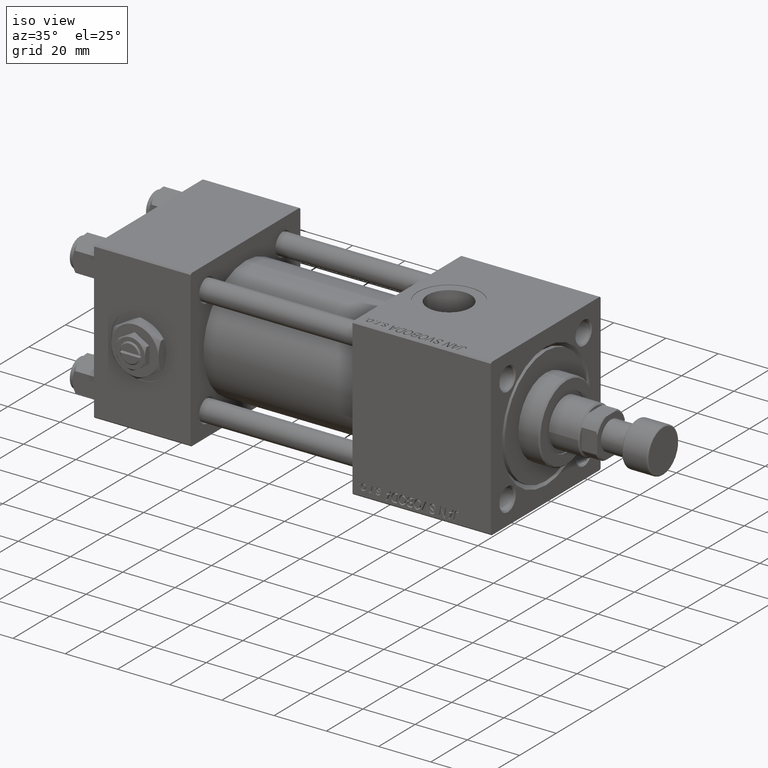
[diagram: clean part render]
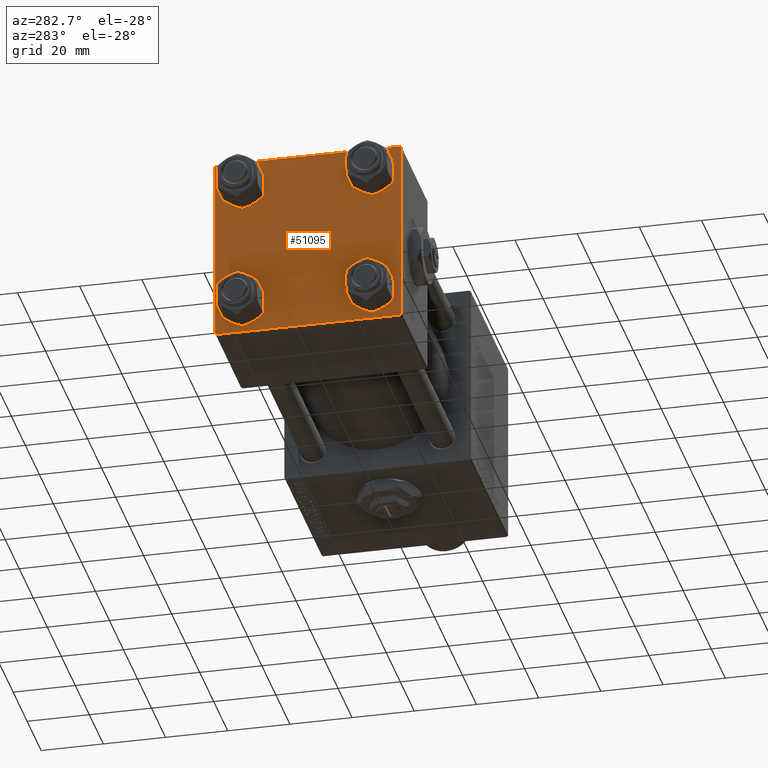
[diagram: tour spotlight — one face highlighted and labeled with its STEP entity id]
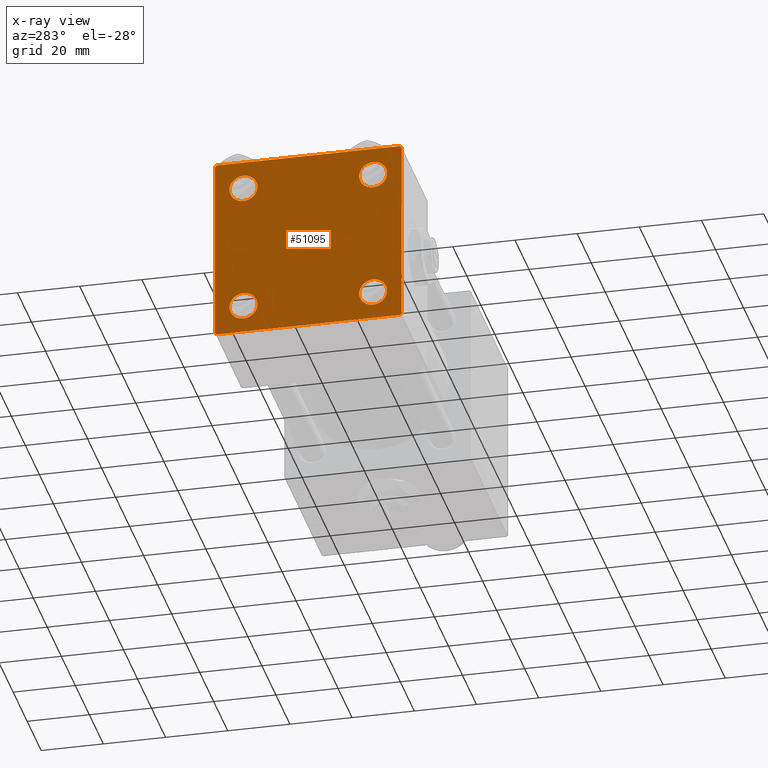
[diagram: x-ray of the same camera — body ghosted, this tour face saturated]
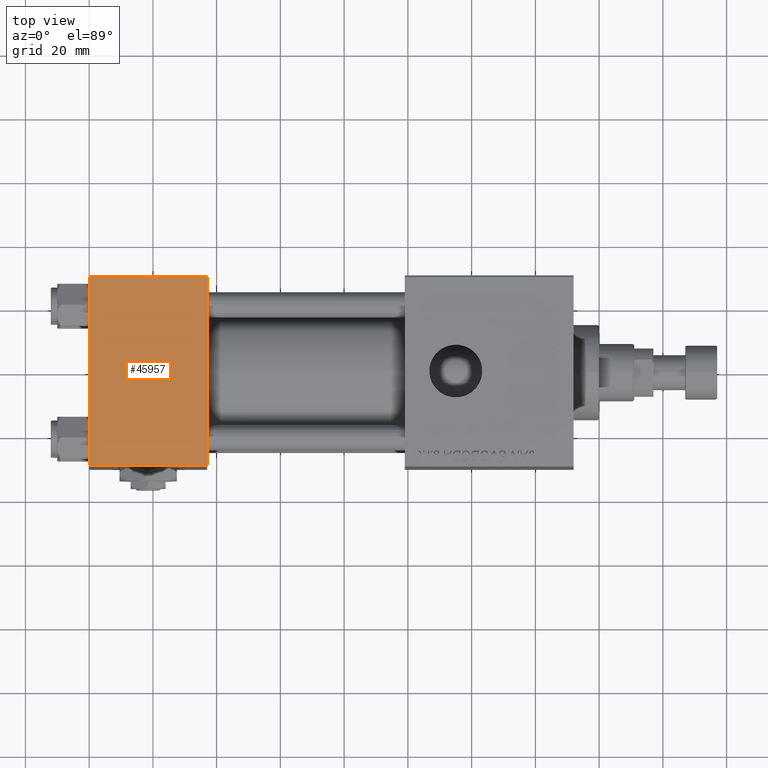
[diagram: tour spotlight — one face highlighted and labeled with its STEP entity id]
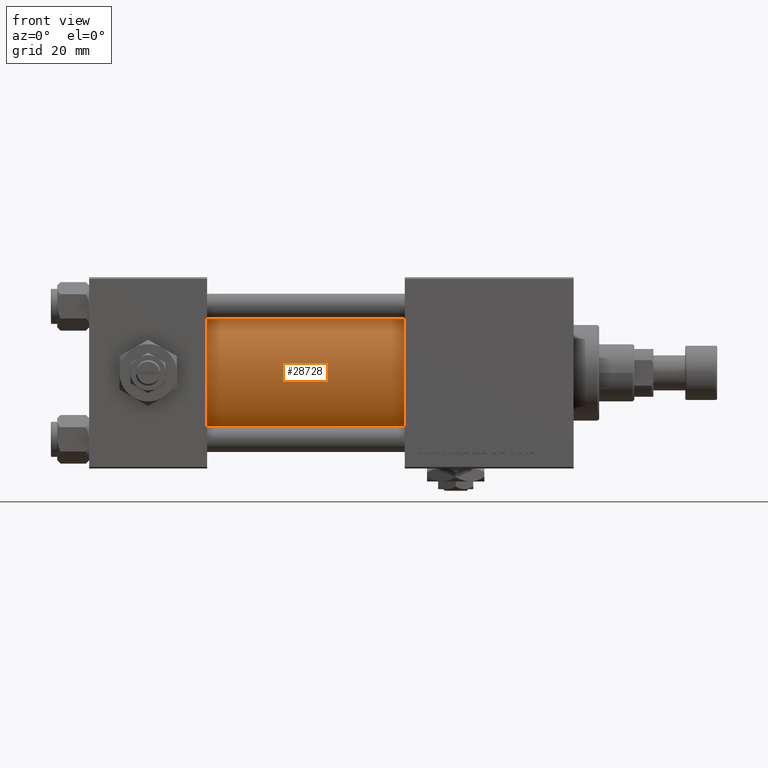
[diagram: tour spotlight — one face highlighted and labeled with its STEP entity id]
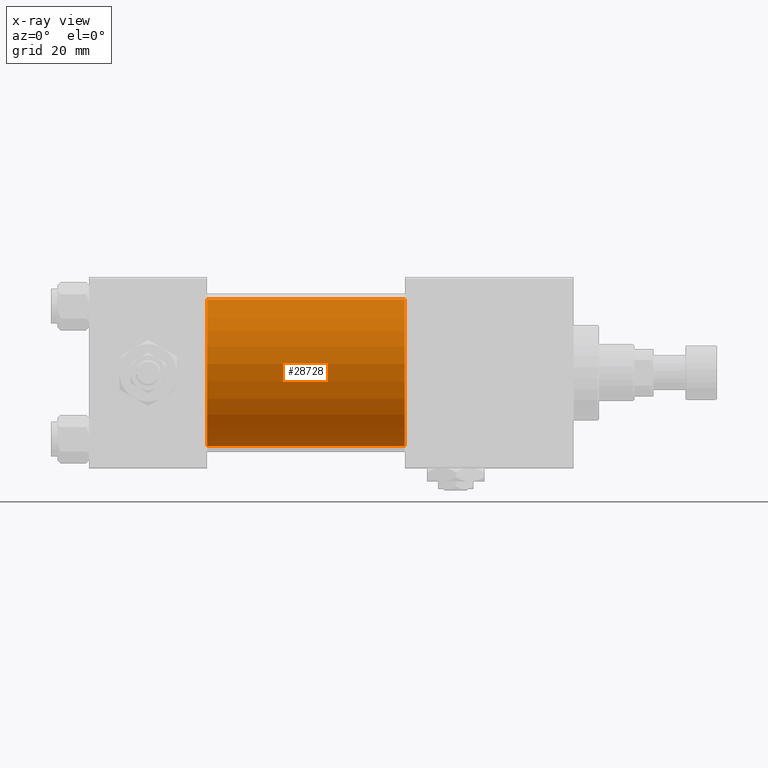
[diagram: x-ray of the same camera — body ghosted, this tour face saturated]
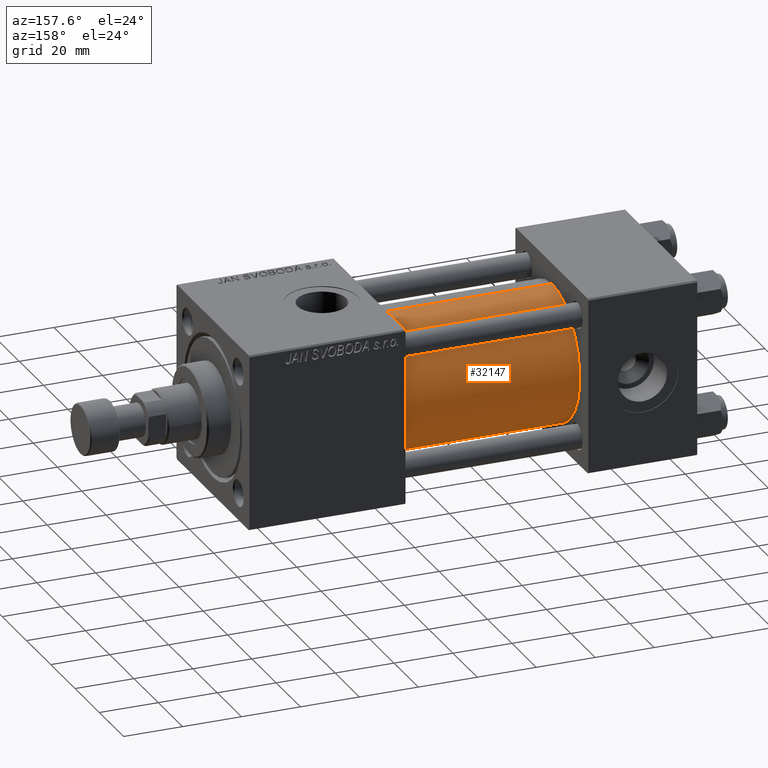
[diagram: tour spotlight — one face highlighted and labeled with its STEP entity id]
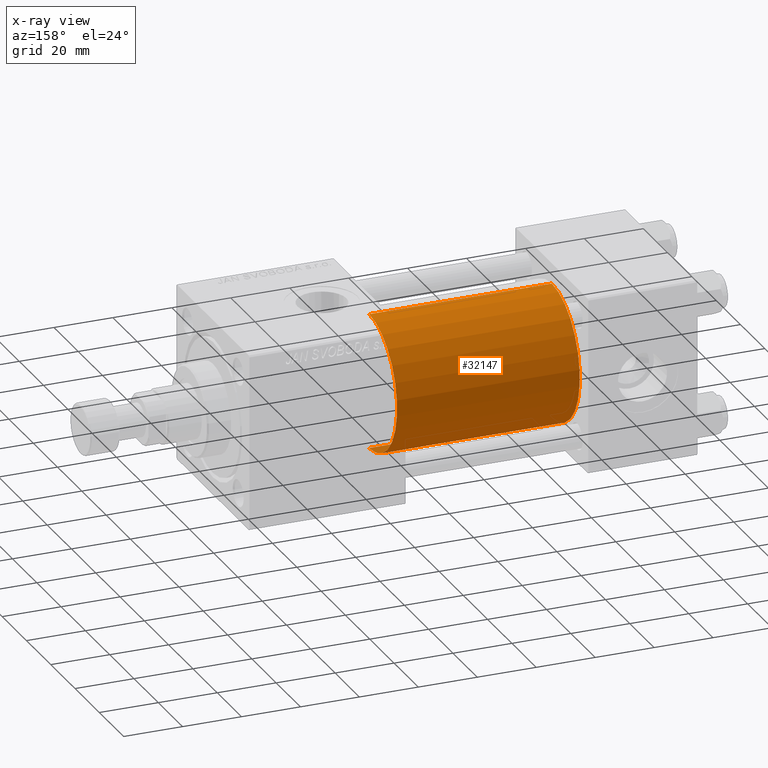
[diagram: x-ray of the same camera — body ghosted, this tour face saturated]
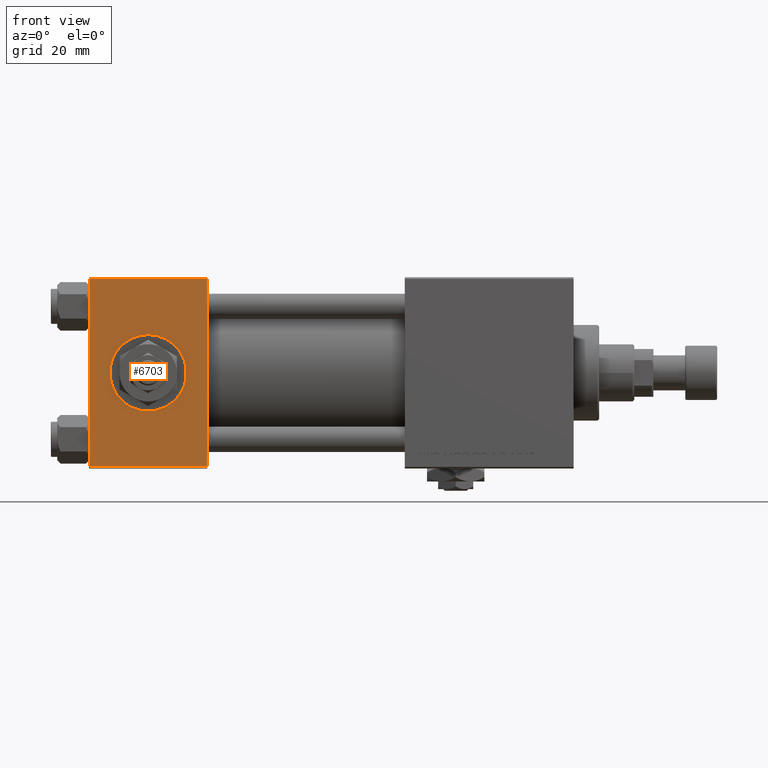
[diagram: tour spotlight — one face highlighted and labeled with its STEP entity id]
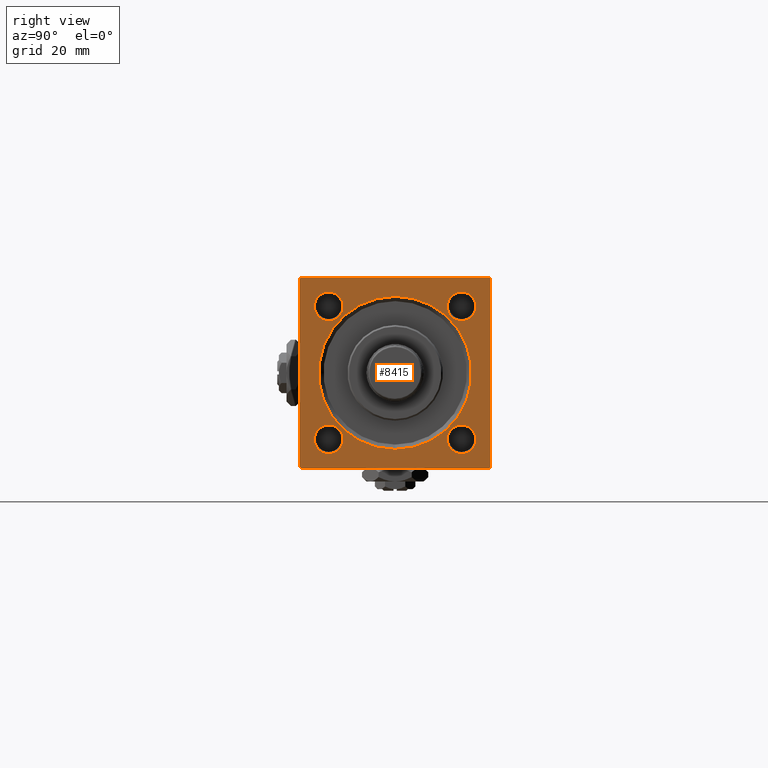
[diagram: tour spotlight — one face highlighted and labeled with its STEP entity id]
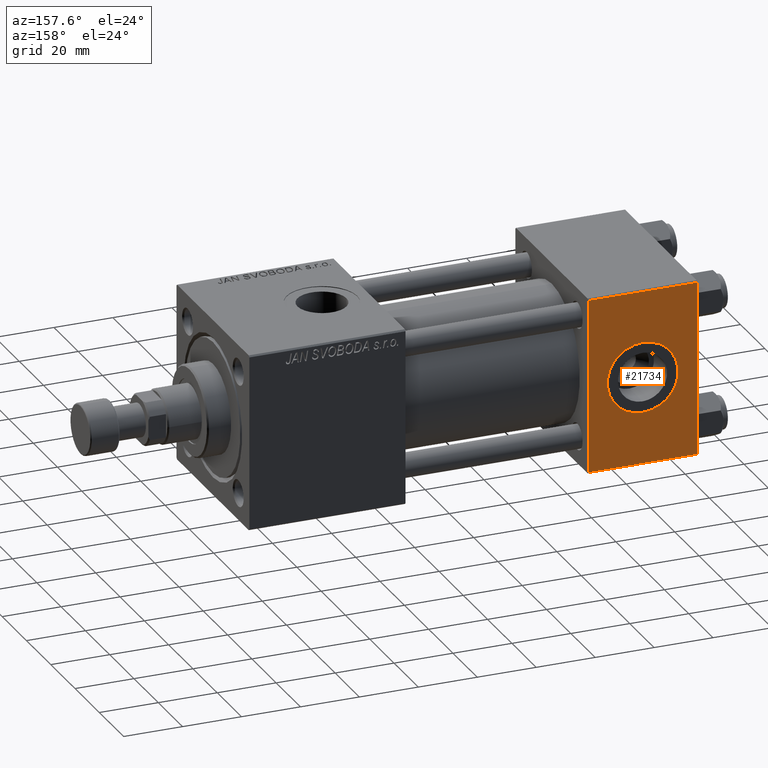
[diagram: tour spotlight — one face highlighted and labeled with its STEP entity id]
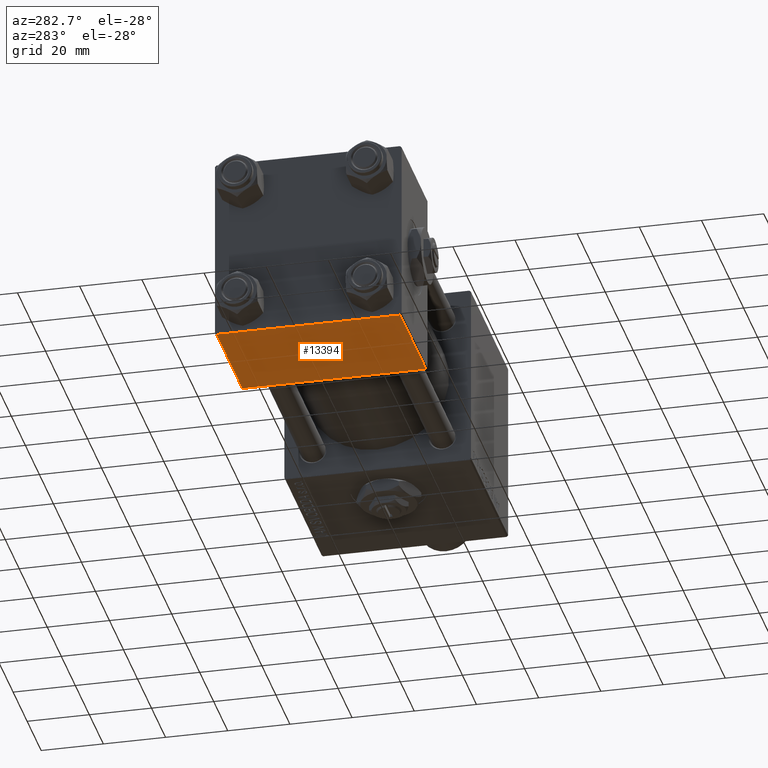
[diagram: tour spotlight — one face highlighted and labeled with its STEP entity id]
A machine part: a face-by-face anatomy tour. The part has 1261 B-rep faces; the first image is the clean iso view, then the 8 largest visible faces are spotlighted one at a time (largest first), each with its STEP entity span.

Face 1 — auxiliary view, entity #51095. An x-ray twin of the same camera follows (body ghosted, this face saturated) — the face is partly hidden behind the body. In plain terms, the highlighted planar face has unit normal (-1, 0, 0).
Definition (entity closure, byte-faithful):
#159 = VERTEX_POINT ( 'NONE', #3051 ) ;
#198 = DIRECTION ( 'NONE',  ( 0.000000000000000000, 0.000000000000000000, 1.000000000000000000 ) ) ;
#494 = DIRECTION ( 'NONE',  ( 0.000000000000000000, 0.000000000000000000, 1.000000000000000000 ) ) ;
#1078 = VECTOR ( 'NONE', #50096, 1000.000000000000114 ) ;
#1277 = DIRECTION ( 'NONE',  ( 1.000000000000000000, -0.000000000000000000, 0.000000000000000000 ) ) ;
#1542 = EDGE_CURVE ( 'NONE', #36857, #29652, #11502, .T. ) ;
#1842 = ORIENTED_EDGE ( 'NONE', *, *, #30052, .T. ) ;
#1945 = DIRECTION ( 'NONE',  ( 0.000000000000000000, 0.000000000000000000, 1.000000000000000000 ) ) ;
#2103 = CARTESIAN_POINT ( 'NONE',  ( 0.000000000000000000, -20.84999999999999076, 25.35000000000002274 ) ) ;
#2780 = PLANE ( 'NONE',  #31702 ) ;
#3051 = CARTESIAN_POINT ( 'NONE',  ( 0.000000000000000000, 20.84999999999999787, -16.34999999999998366 ) ) ;
#3418 = DIRECTION ( 'NONE',  ( 1.000000000000000000, -0.000000000000000000, 0.000000000000000000 ) ) ;
#3512 = DIRECTION ( 'NONE',  ( 1.000000000000000000, -0.000000000000000000, 0.000000000000000000 ) ) ;
#3519 = DIRECTION ( 'NONE',  ( 0.000000000000000000, 0.7071067811865474617, -0.7071067811865474617 ) ) ;
#3554 = CARTESIAN_POINT ( 'NONE',  ( 0.000000000000000000, 29.74999999999957723, -29.75000000000040501 ) ) ;
#4440 = CARTESIAN_POINT ( 'NONE',  ( 0.000000000000000000, 29.99999999999999289, 30.00000000000000000 ) ) ;
#4480 = DIRECTION ( 'NONE',  ( 1.000000000000000000, -0.000000000000000000, 0.000000000000000000 ) ) ;
#4918 = CIRCLE ( 'NONE', #30382, 4.500000000000017764 ) ;
#5091 = ORIENTED_EDGE ( 'NONE', *, *, #37803, .F. ) ;
#5269 = DIRECTION ( 'NONE',  ( 0.000000000000000000, 0.000000000000000000, 1.000000000000000000 ) ) ;
#6449 = CARTESIAN_POINT ( 'NONE',  ( 0.000000000000000000, 20.84999999999999787, 16.34999999999998366 ) ) ;
#6457 = ORIENTED_EDGE ( 'NONE', *, *, #36996, .T. ) ;
#6502 = DIRECTION ( 'NONE',  ( -0.000000000000000000, -0.7071067811865574537, -0.7071067811865376918 ) ) ;
#6509 = CARTESIAN_POINT ( 'NONE',  ( 0.000000000000000000, 29.99999999999999289, -30.00000000000000000 ) ) ;
#7283 = VERTEX_POINT ( 'NONE', #2103 ) ;
#7395 = CIRCLE ( 'NONE', #38828, 4.500000000000017764 ) ;
#7584 = CARTESIAN_POINT ( 'NONE',  ( 0.000000000000000000, 0.000000000000000000, 0.000000000000000000 ) ) ;
#7934 = CIRCLE ( 'NONE', #21493, 4.500000000000017764 ) ;
#8432 = CIRCLE ( 'NONE', #33039, 4.500000000000017764 ) ;
#9025 = DIRECTION ( 'NONE',  ( 0.000000000000000000, 0.000000000000000000, 1.000000000000000000 ) ) ;
#9266 = DIRECTION ( 'NONE',  ( 0.000000000000000000, 0.000000000000000000, -1.000000000000000000 ) ) ;
#9329 = CIRCLE ( 'NONE', #11044, 4.500000000000017764 ) ;
#9511 = VECTOR ( 'NONE', #22728, 1000.000000000000000 ) ;
#9684 = ORIENTED_EDGE ( 'NONE', *, *, #42705, .F. ) ;
#9807 = VECTOR ( 'NONE', #31706, 1000.000000000000000 ) ;
#10134 = CARTESIAN_POINT ( 'NONE',  ( -0.000000000000000000, -29.74999999999999645, 29.74999999999999645 ) ) ;
#10165 = CARTESIAN_POINT ( 'NONE',  ( 0.000000000000000000, -20.84999999999999076, -25.35000000000002274 ) ) ;
#11044 = AXIS2_PLACEMENT_3D ( 'NONE', #21228, #4480, #494 ) ;
#11097 = AXIS2_PLACEMENT_3D ( 'NONE', #39928, #25186, #198 ) ;
#11502 = LINE ( 'NONE', #15225, #15633 ) ;
#12444 = CARTESIAN_POINT ( 'NONE',  ( 0.000000000000000000, -20.84999999999999076, 20.85000000000000497 ) ) ;
#12466 = VERTEX_POINT ( 'NONE', #36590 ) ;
#13079 = AXIS2_PLACEMENT_3D ( 'NONE', #51395, #51925, #43684 ) ;
#13086 = ORIENTED_EDGE ( 'NONE', *, *, #13228, .T. ) ;
#13228 = EDGE_CURVE ( 'NONE', #159, #32481, #21577, .T. ) ;
#13439 = ORIENTED_EDGE ( 'NONE', *, *, #14961, .T. ) ;
#14961 = EDGE_CURVE ( 'NONE', #27317, #7283, #7934, .T. ) ;
#15225 = CARTESIAN_POINT ( 'NONE',  ( 0.000000000000000000, 29.74999999999999645, 29.74999999999999645 ) ) ;
#15531 = LINE ( 'NONE', #6509, #9511 ) ;
#15583 = CARTESIAN_POINT ( 'NONE',  ( 0.000000000000000000, 20.84999999999999787, 25.35000000000001918 ) ) ;
#15633 = VECTOR ( 'NONE', #3519, 1000.000000000000114 ) ;
#15966 = CIRCLE ( 'NONE', #27004, 4.500000000000017764 ) ;
#16301 = VERTEX_POINT ( 'NONE', #28378 ) ;
#16457 = EDGE_LOOP ( 'NONE', ( #13086, #1842 ) ) ;
#17633 = CARTESIAN_POINT ( 'NONE',  ( 0.000000000000000000, -29.75000000000001066, -29.75000000000001066 ) ) ;
#18230 = CARTESIAN_POINT ( 'NONE',  ( 0.000000000000000000, -29.50000000000000000, -30.00000000000000711 ) ) ;
#18687 = LINE ( 'NONE', #50882, #9807 ) ;
#20164 = EDGE_CURVE ( 'NONE', #29652, #48970, #18687, .T. ) ;
#21228 = CARTESIAN_POINT ( 'NONE',  ( 0.000000000000000000, 20.84999999999999787, 20.85000000000000142 ) ) ;
#21312 = ORIENTED_EDGE ( 'NONE', *, *, #39057, .T. ) ;
#21493 = AXIS2_PLACEMENT_3D ( 'NONE', #51938, #3512, #44469 ) ;
#21577 = CIRCLE ( 'NONE', #13079, 4.500000000000017764 ) ;
#22170 = DIRECTION ( 'NONE',  ( 1.000000000000000000, -0.000000000000000000, 0.000000000000000000 ) ) ;
#22624 = EDGE_CURVE ( 'NONE', #7283, #27317, #7395, .T. ) ;
#22670 = ORIENTED_EDGE ( 'NONE', *, *, #24782, .T. ) ;
#22728 = DIRECTION ( 'NONE',  ( 0.000000000000000000, -1.000000000000000000, -1.156482317317871725E-16 ) ) ;
#22744 = DIRECTION ( 'NONE',  ( -1.000000000000000000, 0.000000000000000000, -0.000000000000000000 ) ) ;
#23238 = LINE ( 'NONE', #3554, #51792 ) ;
#23261 = DIRECTION ( 'NONE',  ( -0.000000000000000000, 0.000000000000000000, 1.000000000000000000 ) ) ;
#24601 = VERTEX_POINT ( 'NONE', #34294 ) ;
#24782 = EDGE_CURVE ( 'NONE', #32714, #49459, #4918, .T. ) ;
#25186 = DIRECTION ( 'NONE',  ( 1.000000000000000000, -0.000000000000000000, 0.000000000000000000 ) ) ;
#25483 = LINE ( 'NONE', #34252, #47814 ) ;
#26732 = VERTEX_POINT ( 'NONE', #50737 ) ;
#27004 = AXIS2_PLACEMENT_3D ( 'NONE', #50235, #1277, #5269 ) ;
#27317 = VERTEX_POINT ( 'NONE', #47319 ) ;
#27518 = FACE_BOUND ( 'NONE', #39230, .T. ) ;
#27618 = DIRECTION ( 'NONE',  ( 0.000000000000000000, 0.000000000000000000, 1.000000000000000000 ) ) ;
#27783 = FACE_BOUND ( 'NONE', #16457, .T. ) ;
#28132 = DIRECTION ( 'NONE',  ( 0.000000000000000000, -1.000000000000000000, -1.156482317317871725E-16 ) ) ;
#28337 = EDGE_LOOP ( 'NONE', ( #50060, #42615, #30700, #47338, #5091, #38624, #9684, #28928 ) ) ;
#28378 = CARTESIAN_POINT ( 'NONE',  ( 0.000000000000000000, 29.49999999999997868, -30.00000000000000000 ) ) ;
#28928 = ORIENTED_EDGE ( 'NONE', *, *, #1542, .T. ) ;
#29652 = VERTEX_POINT ( 'NONE', #32044 ) ;
#30052 = EDGE_CURVE ( 'NONE', #32481, #159, #15966, .T. ) ;
#30382 = AXIS2_PLACEMENT_3D ( 'NONE', #46462, #45471, #9025 ) ;
#30700 = ORIENTED_EDGE ( 'NONE', *, *, #49178, .T. ) ;
#30825 = VECTOR ( 'NONE', #51365, 1000.000000000000114 ) ;
#30979 = CARTESIAN_POINT ( 'NONE',  ( 0.000000000000000000, -30.00000000000000000, 29.49999999999999289 ) ) ;
#31702 = AXIS2_PLACEMENT_3D ( 'NONE', #7584, #22744, #23261 ) ;
#31706 = DIRECTION ( 'NONE',  ( 0.000000000000000000, 0.000000000000000000, -1.000000000000000000 ) ) ;
#32044 = CARTESIAN_POINT ( 'NONE',  ( 0.000000000000000000, 29.99999999999999289, 29.50000000000000000 ) ) ;
#32481 = VERTEX_POINT ( 'NONE', #32651 ) ;
#32651 = CARTESIAN_POINT ( 'NONE',  ( 0.000000000000000000, 20.84999999999999787, -25.35000000000001918 ) ) ;
#32714 = VERTEX_POINT ( 'NONE', #15583 ) ;
#32909 = LINE ( 'NONE', #4440, #49226 ) ;
#33039 = AXIS2_PLACEMENT_3D ( 'NONE', #38662, #22170, #1945 ) ;
#33807 = EDGE_CURVE ( 'NONE', #48970, #16301, #23238, .T. ) ;
#34018 = CIRCLE ( 'NONE', #11097, 4.500000000000017764 ) ;
#34252 = CARTESIAN_POINT ( 'NONE',  ( 0.000000000000000000, -30.00000000000000000, 29.99999999999999289 ) ) ;
#34294 = CARTESIAN_POINT ( 'NONE',  ( 0.000000000000000000, -29.49999999999998579, 29.99999999999999289 ) ) ;
#34897 = VERTEX_POINT ( 'NONE', #10165 ) ;
#36590 = CARTESIAN_POINT ( 'NONE',  ( 0.000000000000000000, -20.84999999999999076, -16.34999999999998721 ) ) ;
#36857 = VERTEX_POINT ( 'NONE', #51641 ) ;
#36996 = EDGE_CURVE ( 'NONE', #34897, #12466, #34018, .T. ) ;
#37803 = EDGE_CURVE ( 'NONE', #49927, #26732, #25483, .T. ) ;
#37969 = EDGE_LOOP ( 'NONE', ( #21312, #6457 ) ) ;
#38379 = LINE ( 'NONE', #17633, #1078 ) ;
#38624 = ORIENTED_EDGE ( 'NONE', *, *, #51772, .T. ) ;
#38662 = CARTESIAN_POINT ( 'NONE',  ( 0.000000000000000000, -20.84999999999999076, -20.85000000000000497 ) ) ;
#38828 = AXIS2_PLACEMENT_3D ( 'NONE', #12444, #3418, #27618 ) ;
#39057 = EDGE_CURVE ( 'NONE', #12466, #34897, #8432, .T. ) ;
#39230 = EDGE_LOOP ( 'NONE', ( #22670, #45043 ) ) ;
#39928 = CARTESIAN_POINT ( 'NONE',  ( 0.000000000000000000, -20.84999999999999076, -20.85000000000000497 ) ) ;
#42615 = ORIENTED_EDGE ( 'NONE', *, *, #33807, .T. ) ;
#42705 = EDGE_CURVE ( 'NONE', #36857, #24601, #32909, .T. ) ;
#43124 = LINE ( 'NONE', #10134, #30825 ) ;
#43684 = DIRECTION ( 'NONE',  ( 0.000000000000000000, 0.000000000000000000, 1.000000000000000000 ) ) ;
#44190 = EDGE_CURVE ( 'NONE', #49459, #32714, #9329, .T. ) ;
#44469 = DIRECTION ( 'NONE',  ( 0.000000000000000000, 0.000000000000000000, 1.000000000000000000 ) ) ;
#44656 = EDGE_LOOP ( 'NONE', ( #50917, #13439 ) ) ;
#45043 = ORIENTED_EDGE ( 'NONE', *, *, #44190, .T. ) ;
#45471 = DIRECTION ( 'NONE',  ( 1.000000000000000000, -0.000000000000000000, 0.000000000000000000 ) ) ;
#46462 = CARTESIAN_POINT ( 'NONE',  ( 0.000000000000000000, 20.84999999999999787, 20.85000000000000142 ) ) ;
#47319 = CARTESIAN_POINT ( 'NONE',  ( 0.000000000000000000, -20.84999999999999076, 16.34999999999998721 ) ) ;
#47338 = ORIENTED_EDGE ( 'NONE', *, *, #51309, .T. ) ;
#47814 = VECTOR ( 'NONE', #9266, 1000.000000000000000 ) ;
#48245 = VERTEX_POINT ( 'NONE', #18230 ) ;
#48588 = CARTESIAN_POINT ( 'NONE',  ( 0.000000000000000000, 29.99999999999999289, -29.50000000000000000 ) ) ;
#48970 = VERTEX_POINT ( 'NONE', #48588 ) ;
#49178 = EDGE_CURVE ( 'NONE', #16301, #48245, #15531, .T. ) ;
#49226 = VECTOR ( 'NONE', #28132, 1000.000000000000000 ) ;
#49459 = VERTEX_POINT ( 'NONE', #6449 ) ;
#49927 = VERTEX_POINT ( 'NONE', #30979 ) ;
#50060 = ORIENTED_EDGE ( 'NONE', *, *, #20164, .T. ) ;
#50096 = DIRECTION ( 'NONE',  ( 0.000000000000000000, -0.7071067811865474617, 0.7071067811865474617 ) ) ;
#50235 = CARTESIAN_POINT ( 'NONE',  ( 0.000000000000000000, 20.84999999999999787, -20.85000000000000142 ) ) ;
#50737 = CARTESIAN_POINT ( 'NONE',  ( 0.000000000000000000, -30.00000000000000000, -29.50000000000001776 ) ) ;
#50882 = CARTESIAN_POINT ( 'NONE',  ( 0.000000000000000000, 29.99999999999999289, 30.00000000000000000 ) ) ;
#50917 = ORIENTED_EDGE ( 'NONE', *, *, #22624, .T. ) ;
#51095 = ADVANCED_FACE ( 'NONE', ( #52000, #51476, #27783, #27518, #52265 ), #2780, .T. ) ;
#51309 = EDGE_CURVE ( 'NONE', #48245, #26732, #38379, .T. ) ;
#51365 = DIRECTION ( 'NONE',  ( -0.000000000000000000, 0.7071067811865474617, 0.7071067811865474617 ) ) ;
#51395 = CARTESIAN_POINT ( 'NONE',  ( 0.000000000000000000, 20.84999999999999787, -20.85000000000000142 ) ) ;
#51476 = FACE_BOUND ( 'NONE', #37969, .T. ) ;
#51641 = CARTESIAN_POINT ( 'NONE',  ( 0.000000000000000000, 29.49999999999999289, 30.00000000000000000 ) ) ;
#51772 = EDGE_CURVE ( 'NONE', #49927, #24601, #43124, .T. ) ;
#51792 = VECTOR ( 'NONE', #6502, 999.9999999999998863 ) ;
#51925 = DIRECTION ( 'NONE',  ( 1.000000000000000000, -0.000000000000000000, 0.000000000000000000 ) ) ;
#51938 = CARTESIAN_POINT ( 'NONE',  ( 0.000000000000000000, -20.84999999999999076, 20.85000000000000497 ) ) ;
#52000 = FACE_BOUND ( 'NONE', #44656, .T. ) ;
#52265 = FACE_OUTER_BOUND ( 'NONE', #28337, .T. ) ;

Face 2 — top view, entity #45957. In plain terms, the highlighted planar face has unit normal (0, 0, -1).
Definition (entity closure, byte-faithful):
#4440 = CARTESIAN_POINT ( 'NONE',  ( 0.000000000000000000, 29.99999999999999289, 30.00000000000000000 ) ) ;
#4765 = DIRECTION ( 'NONE',  ( -1.000000000000000000, 0.000000000000000000, 0.000000000000000000 ) ) ;
#8659 = DIRECTION ( 'NONE',  ( 1.000000000000000000, 0.000000000000000000, 0.000000000000000000 ) ) ;
#9470 = CARTESIAN_POINT ( 'NONE',  ( 37.00000000000000000, 29.99999999999999289, 30.00000000000000000 ) ) ;
#12903 = CARTESIAN_POINT ( 'NONE',  ( 37.00000000000000000, -29.50000000000000000, 29.99999999999999289 ) ) ;
#13595 = CARTESIAN_POINT ( 'NONE',  ( 37.00000000000000000, 29.99999999999999289, 30.00000000000000000 ) ) ;
#14394 = VECTOR ( 'NONE', #49531, 1000.000000000000000 ) ;
#15876 = ORIENTED_EDGE ( 'NONE', *, *, #35998, .T. ) ;
#16121 = EDGE_LOOP ( 'NONE', ( #34771, #46346, #27567, #15876 ) ) ;
#16937 = DIRECTION ( 'NONE',  ( 0.000000000000000000, 1.000000000000000000, 1.156482317317871725E-16 ) ) ;
#20635 = LINE ( 'NONE', #12903, #40932 ) ;
#22150 = VECTOR ( 'NONE', #4765, 1000.000000000000000 ) ;
#22548 = VERTEX_POINT ( 'NONE', #24415 ) ;
#24415 = CARTESIAN_POINT ( 'NONE',  ( 37.00000000000000000, 29.49999999999999289, 30.00000000000000000 ) ) ;
#24601 = VERTEX_POINT ( 'NONE', #34294 ) ;
#27567 = ORIENTED_EDGE ( 'NONE', *, *, #40148, .F. ) ;
#28132 = DIRECTION ( 'NONE',  ( 0.000000000000000000, -1.000000000000000000, -1.156482317317871725E-16 ) ) ;
#28923 = AXIS2_PLACEMENT_3D ( 'NONE', #9470, #33935, #16937 ) ;
#29670 = FACE_OUTER_BOUND ( 'NONE', #16121, .T. ) ;
#31401 = VERTEX_POINT ( 'NONE', #31803 ) ;
#31803 = CARTESIAN_POINT ( 'NONE',  ( 37.00000000000000000, -29.49999999999998579, 29.99999999999999289 ) ) ;
#32909 = LINE ( 'NONE', #4440, #49226 ) ;
#33935 = DIRECTION ( 'NONE',  ( 0.000000000000000000, 1.156482317317871725E-16, -1.000000000000000000 ) ) ;
#34294 = CARTESIAN_POINT ( 'NONE',  ( 0.000000000000000000, -29.49999999999998579, 29.99999999999999289 ) ) ;
#34771 = ORIENTED_EDGE ( 'NONE', *, *, #42705, .T. ) ;
#35998 = EDGE_CURVE ( 'NONE', #22548, #36857, #44952, .T. ) ;
#36857 = VERTEX_POINT ( 'NONE', #51641 ) ;
#36958 = CARTESIAN_POINT ( 'NONE',  ( 0.000000000000000000, 29.49999999999999289, 30.00000000000000000 ) ) ;
#37152 = PLANE ( 'NONE',  #28923 ) ;
#40148 = EDGE_CURVE ( 'NONE', #22548, #31401, #41546, .T. ) ;
#40932 = VECTOR ( 'NONE', #8659, 1000.000000000000000 ) ;
#41546 = LINE ( 'NONE', #13595, #14394 ) ;
#42705 = EDGE_CURVE ( 'NONE', #36857, #24601, #32909, .T. ) ;
#44952 = LINE ( 'NONE', #36958, #22150 ) ;
#45957 = ADVANCED_FACE ( 'NONE', ( #29670 ), #37152, .F. ) ;
#46346 = ORIENTED_EDGE ( 'NONE', *, *, #48919, .T. ) ;
#48919 = EDGE_CURVE ( 'NONE', #24601, #31401, #20635, .T. ) ;
#49226 = VECTOR ( 'NONE', #28132, 1000.000000000000000 ) ;
#49531 = DIRECTION ( 'NONE',  ( 0.000000000000000000, -1.000000000000000000, -1.156482317317871725E-16 ) ) ;
#51641 = CARTESIAN_POINT ( 'NONE',  ( 0.000000000000000000, 29.49999999999999289, 30.00000000000000000 ) ) ;

Face 3 — front view, entity #28728. An x-ray twin of the same camera follows (body ghosted, this face saturated) — the face is partly hidden behind the body. In plain terms, the highlighted cylindrical surface (partial cylindrical patch) has radius 23 mm, axis along (-1, -0, -0).
Definition (entity closure, byte-faithful):
#3482 = DIRECTION ( 'NONE',  ( -1.000000000000000000, -0.000000000000000000, -0.000000000000000000 ) ) ;
#7309 = VERTEX_POINT ( 'NONE', #45992 ) ;
#8266 = VECTOR ( 'NONE', #44001, 1000.000000000000000 ) ;
#9773 = ORIENTED_EDGE ( 'NONE', *, *, #29314, .F. ) ;
#10632 = DIRECTION ( 'NONE',  ( 1.000000000000000000, -0.000000000000000000, 0.000000000000000000 ) ) ;
#11989 = VERTEX_POINT ( 'NONE', #52163 ) ;
#12711 = CARTESIAN_POINT ( 'NONE',  ( 99.00000000000000000, 2.146024240737016609E-16, -23.00000000000000000 ) ) ;
#13405 = AXIS2_PLACEMENT_3D ( 'NONE', #18013, #22541, #34233 ) ;
#17349 = FACE_OUTER_BOUND ( 'NONE', #49939, .T. ) ;
#18013 = CARTESIAN_POINT ( 'NONE',  ( 99.00000000000000000, -2.602085213965210642E-15, 0.000000000000000000 ) ) ;
#18879 = CARTESIAN_POINT ( 'NONE',  ( 37.00000000000000000, -2.602085213965210642E-15, 0.000000000000000000 ) ) ;
#18905 = CIRCLE ( 'NONE', #23152, 23.00000000000000000 ) ;
#19409 = DIRECTION ( 'NONE',  ( 0.000000000000000000, 0.000000000000000000, 1.000000000000000000 ) ) ;
#21997 = VECTOR ( 'NONE', #3482, 1000.000000000000000 ) ;
#22541 = DIRECTION ( 'NONE',  ( 1.000000000000000000, 0.000000000000000000, 0.000000000000000000 ) ) ;
#22724 = AXIS2_PLACEMENT_3D ( 'NONE', #37565, #26119, #33578 ) ;
#23152 = AXIS2_PLACEMENT_3D ( 'NONE', #18879, #10632, #19409 ) ;
#23997 = EDGE_CURVE ( 'NONE', #47016, #51196, #39480, .T. ) ;
#26119 = DIRECTION ( 'NONE',  ( -1.000000000000000000, -0.000000000000000000, -0.000000000000000000 ) ) ;
#28728 = ADVANCED_FACE ( 'NONE', ( #17349 ), #34365, .T. ) ;
#29314 = EDGE_CURVE ( 'NONE', #7309, #47016, #34636, .T. ) ;
#30706 = ORIENTED_EDGE ( 'NONE', *, *, #50629, .T. ) ;
#31146 = LINE ( 'NONE', #39929, #21997 ) ;
#31936 = ORIENTED_EDGE ( 'NONE', *, *, #32003, .T. ) ;
#32003 = EDGE_CURVE ( 'NONE', #7309, #11989, #31146, .T. ) ;
#33578 = DIRECTION ( 'NONE',  ( 0.000000000000000000, 0.000000000000000000, 1.000000000000000000 ) ) ;
#34233 = DIRECTION ( 'NONE',  ( 0.000000000000000000, 0.000000000000000000, -1.000000000000000000 ) ) ;
#34365 = CYLINDRICAL_SURFACE ( 'NONE', #22724, 23.00000000000000000 ) ;
#34636 = CIRCLE ( 'NONE', #13405, 23.00000000000000000 ) ;
#36552 = CARTESIAN_POINT ( 'NONE',  ( 37.00000000000000000, 2.146024240737016609E-16, -23.00000000000000000 ) ) ;
#37565 = CARTESIAN_POINT ( 'NONE',  ( 99.00000000000000000, -2.602085213965210642E-15, 0.000000000000000000 ) ) ;
#39480 = LINE ( 'NONE', #43741, #8266 ) ;
#39929 = CARTESIAN_POINT ( 'NONE',  ( 99.00000000000000000, -2.602085213965210642E-15, 23.00000000000000000 ) ) ;
#43741 = CARTESIAN_POINT ( 'NONE',  ( 99.00000000000000000, 2.146024240737016609E-16, -23.00000000000000000 ) ) ;
#44001 = DIRECTION ( 'NONE',  ( -1.000000000000000000, -0.000000000000000000, -0.000000000000000000 ) ) ;
#45992 = CARTESIAN_POINT ( 'NONE',  ( 99.00000000000000000, -2.602085213965210642E-15, 23.00000000000000000 ) ) ;
#47016 = VERTEX_POINT ( 'NONE', #12711 ) ;
#49734 = ORIENTED_EDGE ( 'NONE', *, *, #23997, .F. ) ;
#49939 = EDGE_LOOP ( 'NONE', ( #49734, #9773, #31936, #30706 ) ) ;
#50629 = EDGE_CURVE ( 'NONE', #11989, #51196, #18905, .T. ) ;
#51196 = VERTEX_POINT ( 'NONE', #36552 ) ;
#52163 = CARTESIAN_POINT ( 'NONE',  ( 37.00000000000000000, -2.602085213965210642E-15, 23.00000000000000000 ) ) ;

Face 4 — auxiliary view, entity #32147. An x-ray twin of the same camera follows (body ghosted, this face saturated) — the face is partly hidden behind the body. In plain terms, the highlighted cylindrical surface (partial cylindrical patch) has radius 23 mm, axis along (-1, -0, -0).
Definition (entity closure, byte-faithful):
#3482 = DIRECTION ( 'NONE',  ( -1.000000000000000000, -0.000000000000000000, -0.000000000000000000 ) ) ;
#4684 = ORIENTED_EDGE ( 'NONE', *, *, #43588, .F. ) ;
#6166 = ORIENTED_EDGE ( 'NONE', *, *, #23997, .T. ) ;
#7309 = VERTEX_POINT ( 'NONE', #45992 ) ;
#7586 = AXIS2_PLACEMENT_3D ( 'NONE', #42010, #17266, #33496 ) ;
#8203 = EDGE_LOOP ( 'NONE', ( #4684, #6166, #19878, #26446 ) ) ;
#8266 = VECTOR ( 'NONE', #44001, 1000.000000000000000 ) ;
#11989 = VERTEX_POINT ( 'NONE', #52163 ) ;
#12411 = CIRCLE ( 'NONE', #29357, 23.00000000000000000 ) ;
#12711 = CARTESIAN_POINT ( 'NONE',  ( 99.00000000000000000, 2.146024240737016609E-16, -23.00000000000000000 ) ) ;
#17266 = DIRECTION ( 'NONE',  ( -1.000000000000000000, -0.000000000000000000, -0.000000000000000000 ) ) ;
#18682 = AXIS2_PLACEMENT_3D ( 'NONE', #31606, #43592, #31082 ) ;
#19878 = ORIENTED_EDGE ( 'NONE', *, *, #21423, .T. ) ;
#21423 = EDGE_CURVE ( 'NONE', #51196, #11989, #12411, .T. ) ;
#21997 = VECTOR ( 'NONE', #3482, 1000.000000000000000 ) ;
#23997 = EDGE_CURVE ( 'NONE', #47016, #51196, #39480, .T. ) ;
#25770 = FACE_OUTER_BOUND ( 'NONE', #8203, .T. ) ;
#26038 = CYLINDRICAL_SURFACE ( 'NONE', #7586, 23.00000000000000000 ) ;
#26446 = ORIENTED_EDGE ( 'NONE', *, *, #32003, .F. ) ;
#29357 = AXIS2_PLACEMENT_3D ( 'NONE', #39634, #32175, #48930 ) ;
#31082 = DIRECTION ( 'NONE',  ( 0.000000000000000000, 0.000000000000000000, -1.000000000000000000 ) ) ;
#31146 = LINE ( 'NONE', #39929, #21997 ) ;
#31606 = CARTESIAN_POINT ( 'NONE',  ( 99.00000000000000000, -2.602085213965210642E-15, 0.000000000000000000 ) ) ;
#32003 = EDGE_CURVE ( 'NONE', #7309, #11989, #31146, .T. ) ;
#32147 = ADVANCED_FACE ( 'NONE', ( #25770 ), #26038, .T. ) ;
#32175 = DIRECTION ( 'NONE',  ( 1.000000000000000000, -0.000000000000000000, 0.000000000000000000 ) ) ;
#33496 = DIRECTION ( 'NONE',  ( 0.000000000000000000, 0.000000000000000000, 1.000000000000000000 ) ) ;
#36535 = CIRCLE ( 'NONE', #18682, 23.00000000000000000 ) ;
#36552 = CARTESIAN_POINT ( 'NONE',  ( 37.00000000000000000, 2.146024240737016609E-16, -23.00000000000000000 ) ) ;
#39480 = LINE ( 'NONE', #43741, #8266 ) ;
#39634 = CARTESIAN_POINT ( 'NONE',  ( 37.00000000000000000, -2.602085213965210642E-15, 0.000000000000000000 ) ) ;
#39929 = CARTESIAN_POINT ( 'NONE',  ( 99.00000000000000000, -2.602085213965210642E-15, 23.00000000000000000 ) ) ;
#42010 = CARTESIAN_POINT ( 'NONE',  ( 99.00000000000000000, -2.602085213965210642E-15, 0.000000000000000000 ) ) ;
#43588 = EDGE_CURVE ( 'NONE', #47016, #7309, #36535, .T. ) ;
#43592 = DIRECTION ( 'NONE',  ( 1.000000000000000000, 0.000000000000000000, 0.000000000000000000 ) ) ;
#43741 = CARTESIAN_POINT ( 'NONE',  ( 99.00000000000000000, 2.146024240737016609E-16, -23.00000000000000000 ) ) ;
#44001 = DIRECTION ( 'NONE',  ( -1.000000000000000000, -0.000000000000000000, -0.000000000000000000 ) ) ;
#45992 = CARTESIAN_POINT ( 'NONE',  ( 99.00000000000000000, -2.602085213965210642E-15, 23.00000000000000000 ) ) ;
#47016 = VERTEX_POINT ( 'NONE', #12711 ) ;
#48930 = DIRECTION ( 'NONE',  ( 0.000000000000000000, 0.000000000000000000, 1.000000000000000000 ) ) ;
#51196 = VERTEX_POINT ( 'NONE', #36552 ) ;
#52163 = CARTESIAN_POINT ( 'NONE',  ( 37.00000000000000000, -2.602085213965210642E-15, 23.00000000000000000 ) ) ;

Face 5 — front view, entity #6703. In plain terms, the highlighted planar face has unit normal (0, 1, 0).
Definition (entity closure, byte-faithful):
#1700 = ORIENTED_EDGE ( 'NONE', *, *, #45504, .F. ) ;
#3068 = DIRECTION ( 'NONE',  ( -1.000000000000000000, 0.000000000000000000, 0.000000000000000000 ) ) ;
#3210 = VERTEX_POINT ( 'NONE', #50776 ) ;
#4925 = VERTEX_POINT ( 'NONE', #36826 ) ;
#5817 = CARTESIAN_POINT ( 'NONE',  ( 37.00000000000000000, -30.00000000000000000, -29.50000000000001776 ) ) ;
#6703 = ADVANCED_FACE ( 'NONE', ( #26693, #22446 ), #47448, .F. ) ;
#6778 = VECTOR ( 'NONE', #44849, 1000.000000000000000 ) ;
#9266 = DIRECTION ( 'NONE',  ( 0.000000000000000000, 0.000000000000000000, -1.000000000000000000 ) ) ;
#10522 = CARTESIAN_POINT ( 'NONE',  ( 37.00000000000000000, -30.00000000000000000, 29.49999999999999289 ) ) ;
#12053 = EDGE_CURVE ( 'NONE', #26732, #40193, #45212, .T. ) ;
#14508 = LINE ( 'NONE', #10522, #26239 ) ;
#16321 = DIRECTION ( 'NONE',  ( 0.000000000000000000, 0.000000000000000000, -1.000000000000000000 ) ) ;
#17079 = AXIS2_PLACEMENT_3D ( 'NONE', #28552, #35741, #16321 ) ;
#19294 = CARTESIAN_POINT ( 'NONE',  ( 18.50000000000000000, -30.00000000000000000, 0.000000000000000000 ) ) ;
#20354 = EDGE_LOOP ( 'NONE', ( #40321, #1700 ) ) ;
#22446 = FACE_OUTER_BOUND ( 'NONE', #29907, .T. ) ;
#22894 = ORIENTED_EDGE ( 'NONE', *, *, #38720, .T. ) ;
#24119 = VECTOR ( 'NONE', #41482, 1000.000000000000000 ) ;
#24810 = ORIENTED_EDGE ( 'NONE', *, *, #34543, .F. ) ;
#25483 = LINE ( 'NONE', #34252, #47814 ) ;
#26239 = VECTOR ( 'NONE', #3068, 1000.000000000000000 ) ;
#26693 = FACE_BOUND ( 'NONE', #20354, .T. ) ;
#26732 = VERTEX_POINT ( 'NONE', #50737 ) ;
#27212 = DIRECTION ( 'NONE',  ( -0.000000000000000000, 1.000000000000000000, 0.000000000000000000 ) ) ;
#28355 = LINE ( 'NONE', #32872, #6778 ) ;
#28552 = CARTESIAN_POINT ( 'NONE',  ( 18.50000000000000000, -30.00000000000000000, 0.000000000000000000 ) ) ;
#29184 = ORIENTED_EDGE ( 'NONE', *, *, #37803, .T. ) ;
#29907 = EDGE_LOOP ( 'NONE', ( #29184, #35521, #24810, #22894 ) ) ;
#30233 = AXIS2_PLACEMENT_3D ( 'NONE', #38404, #27212, #50651 ) ;
#30979 = CARTESIAN_POINT ( 'NONE',  ( 0.000000000000000000, -30.00000000000000000, 29.49999999999999289 ) ) ;
#32384 = CIRCLE ( 'NONE', #17079, 12.00000000000000178 ) ;
#32872 = CARTESIAN_POINT ( 'NONE',  ( 37.00000000000000000, -30.00000000000000000, 29.99999999999999289 ) ) ;
#32981 = CARTESIAN_POINT ( 'NONE',  ( 18.50000000000000000, -30.00000000000000000, -12.00000000000000178 ) ) ;
#34252 = CARTESIAN_POINT ( 'NONE',  ( 0.000000000000000000, -30.00000000000000000, 29.99999999999999289 ) ) ;
#34322 = DIRECTION ( 'NONE',  ( 0.000000000000000000, 0.000000000000000000, -1.000000000000000000 ) ) ;
#34543 = EDGE_CURVE ( 'NONE', #4925, #40193, #28355, .T. ) ;
#35521 = ORIENTED_EDGE ( 'NONE', *, *, #12053, .T. ) ;
#35741 = DIRECTION ( 'NONE',  ( 0.000000000000000000, -1.000000000000000000, -8.673617379884036705E-17 ) ) ;
#36826 = CARTESIAN_POINT ( 'NONE',  ( 37.00000000000000000, -30.00000000000000000, 29.49999999999999289 ) ) ;
#37803 = EDGE_CURVE ( 'NONE', #49927, #26732, #25483, .T. ) ;
#38234 = CIRCLE ( 'NONE', #45048, 12.00000000000000178 ) ;
#38404 = CARTESIAN_POINT ( 'NONE',  ( 37.00000000000000000, -30.00000000000000000, 29.99999999999999289 ) ) ;
#38720 = EDGE_CURVE ( 'NONE', #4925, #49927, #14508, .T. ) ;
#40193 = VERTEX_POINT ( 'NONE', #49011 ) ;
#40321 = ORIENTED_EDGE ( 'NONE', *, *, #47196, .F. ) ;
#41482 = DIRECTION ( 'NONE',  ( 1.000000000000000000, 0.000000000000000000, 0.000000000000000000 ) ) ;
#43257 = VERTEX_POINT ( 'NONE', #32981 ) ;
#44849 = DIRECTION ( 'NONE',  ( 0.000000000000000000, 0.000000000000000000, -1.000000000000000000 ) ) ;
#45048 = AXIS2_PLACEMENT_3D ( 'NONE', #19294, #50296, #34322 ) ;
#45212 = LINE ( 'NONE', #5817, #24119 ) ;
#45504 = EDGE_CURVE ( 'NONE', #3210, #43257, #38234, .T. ) ;
#47196 = EDGE_CURVE ( 'NONE', #43257, #3210, #32384, .T. ) ;
#47448 = PLANE ( 'NONE',  #30233 ) ;
#47814 = VECTOR ( 'NONE', #9266, 1000.000000000000000 ) ;
#49011 = CARTESIAN_POINT ( 'NONE',  ( 37.00000000000000000, -30.00000000000000000, -29.50000000000001776 ) ) ;
#49927 = VERTEX_POINT ( 'NONE', #30979 ) ;
#50296 = DIRECTION ( 'NONE',  ( 0.000000000000000000, -1.000000000000000000, -8.673617379884036705E-17 ) ) ;
#50651 = DIRECTION ( 'NONE',  ( 0.000000000000000000, -0.000000000000000000, 1.000000000000000000 ) ) ;
#50737 = CARTESIAN_POINT ( 'NONE',  ( 0.000000000000000000, -30.00000000000000000, -29.50000000000001776 ) ) ;
#50776 = CARTESIAN_POINT ( 'NONE',  ( 18.50000000000000000, -30.00000000000000000, 12.00000000000000178 ) ) ;

Face 6 — right view, entity #8415. In plain terms, the highlighted planar face has unit normal (-1, 0, 0).
Definition (entity closure, byte-faithful):
#342 = EDGE_CURVE ( 'NONE', #15019, #32617, #9613, .T. ) ;
#429 = CARTESIAN_POINT ( 'NONE',  ( 152.0000000000000000, -20.84999999999999432, 20.85000000000000142 ) ) ;
#692 = VERTEX_POINT ( 'NONE', #17561 ) ;
#1090 = LINE ( 'NONE', #16284, #31323 ) ;
#1168 = DIRECTION ( 'NONE',  ( -1.000000000000000000, 0.000000000000000000, -0.000000000000000000 ) ) ;
#1615 = DIRECTION ( 'NONE',  ( -1.000000000000000000, 0.000000000000000000, -0.000000000000000000 ) ) ;
#2007 = VERTEX_POINT ( 'NONE', #2802 ) ;
#2394 = VECTOR ( 'NONE', #8498, 1000.000000000000114 ) ;
#2565 = DIRECTION ( 'NONE',  ( 0.000000000000000000, 0.000000000000000000, 1.000000000000000000 ) ) ;
#2802 = CARTESIAN_POINT ( 'NONE',  ( 152.0000000000000000, 30.00000000000000000, -29.49999999999997868 ) ) ;
#3376 = DIRECTION ( 'NONE',  ( 0.000000000000000000, 0.7071067811865378028, -0.7071067811865573427 ) ) ;
#3484 = ORIENTED_EDGE ( 'NONE', *, *, #25145, .T. ) ;
#3968 = DIRECTION ( 'NONE',  ( 0.000000000000000000, 0.000000000000000000, -1.000000000000000000 ) ) ;
#4504 = VECTOR ( 'NONE', #43757, 1000.000000000000000 ) ;
#5023 = LINE ( 'NONE', #45462, #2394 ) ;
#5430 = CARTESIAN_POINT ( 'NONE',  ( 152.0000000000000000, -20.84999999999999432, 20.85000000000000142 ) ) ;
#5981 = ORIENTED_EDGE ( 'NONE', *, *, #21943, .T. ) ;
#6161 = EDGE_CURVE ( 'NONE', #30415, #34983, #25986, .T. ) ;
#6575 = CARTESIAN_POINT ( 'NONE',  ( 152.0000000000000000, -29.50000000000001066, -30.00000000000000000 ) ) ;
#6877 = VERTEX_POINT ( 'NONE', #20551 ) ;
#6959 = VERTEX_POINT ( 'NONE', #34073 ) ;
#7513 = EDGE_CURVE ( 'NONE', #44442, #6959, #9767, .T. ) ;
#8415 = ADVANCED_FACE ( 'NONE', ( #48423, #15960, #33399, #31926, #15168, #24209 ), #27400, .F. ) ;
#8430 = CARTESIAN_POINT ( 'NONE',  ( 152.0000000000000000, 20.84999999999999787, 16.35000000000001208 ) ) ;
#8498 = DIRECTION ( 'NONE',  ( -0.000000000000000000, 0.7071067811865474617, 0.7071067811865474617 ) ) ;
#8564 = VERTEX_POINT ( 'NONE', #44948 ) ;
#9011 = CIRCLE ( 'NONE', #12440, 4.499999999999990230 ) ;
#9224 = EDGE_CURVE ( 'NONE', #16303, #47536, #44775, .T. ) ;
#9405 = EDGE_CURVE ( 'NONE', #34983, #30415, #33697, .T. ) ;
#9531 = LINE ( 'NONE', #43065, #47118 ) ;
#9613 = CIRCLE ( 'NONE', #34254, 4.499999999999990230 ) ;
#9767 = CIRCLE ( 'NONE', #43031, 4.499999999999990230 ) ;
#9884 = CIRCLE ( 'NONE', #46428, 4.499999999999990230 ) ;
#10718 = DIRECTION ( 'NONE',  ( 0.000000000000000000, 0.000000000000000000, -1.000000000000000000 ) ) ;
#10864 = DIRECTION ( 'NONE',  ( 0.000000000000000000, 0.000000000000000000, 1.000000000000000000 ) ) ;
#11444 = DIRECTION ( 'NONE',  ( -1.000000000000000000, 0.000000000000000000, -0.000000000000000000 ) ) ;
#11467 = VERTEX_POINT ( 'NONE', #40107 ) ;
#11547 = ORIENTED_EDGE ( 'NONE', *, *, #18171, .F. ) ;
#12210 = CARTESIAN_POINT ( 'NONE',  ( 152.0000000000000000, -30.00000000000000000, -29.49999999999998579 ) ) ;
#12230 = CARTESIAN_POINT ( 'NONE',  ( 152.0000000000000000, -29.50000000000000000, 29.99999999999999289 ) ) ;
#12440 = AXIS2_PLACEMENT_3D ( 'NONE', #429, #40348, #37385 ) ;
#12633 = DIRECTION ( 'NONE',  ( -1.000000000000000000, 0.000000000000000000, -0.000000000000000000 ) ) ;
#12894 = ORIENTED_EDGE ( 'NONE', *, *, #50669, .T. ) ;
#13144 = CARTESIAN_POINT ( 'NONE',  ( 152.0000000000000000, 0.000000000000000000, 0.000000000000000000 ) ) ;
#13463 = CARTESIAN_POINT ( 'NONE',  ( 152.0000000000000000, 20.84999999999999787, -25.34999999999999076 ) ) ;
#15019 = VERTEX_POINT ( 'NONE', #19480 ) ;
#15168 = FACE_BOUND ( 'NONE', #22763, .T. ) ;
#15438 = VERTEX_POINT ( 'NONE', #12210 ) ;
#15960 = FACE_BOUND ( 'NONE', #46586, .T. ) ;
#16262 = CARTESIAN_POINT ( 'NONE',  ( 152.0000000000000000, 0.000000000000000000, -24.00000000000005329 ) ) ;
#16284 = CARTESIAN_POINT ( 'NONE',  ( 152.0000000000000000, -30.00000000000000000, 29.49999999999999289 ) ) ;
#16303 = VERTEX_POINT ( 'NONE', #32366 ) ;
#16686 = ORIENTED_EDGE ( 'NONE', *, *, #30915, .F. ) ;
#16793 = AXIS2_PLACEMENT_3D ( 'NONE', #5430, #34417, #21652 ) ;
#17561 = CARTESIAN_POINT ( 'NONE',  ( 152.0000000000000000, -20.84999999999999432, 25.34999999999999076 ) ) ;
#18171 = EDGE_CURVE ( 'NONE', #11467, #6877, #9531, .T. ) ;
#18606 = ORIENTED_EDGE ( 'NONE', *, *, #39511, .T. ) ;
#18786 = DIRECTION ( 'NONE',  ( -1.000000000000000000, 0.000000000000000000, -0.000000000000000000 ) ) ;
#18857 = ORIENTED_EDGE ( 'NONE', *, *, #26781, .T. ) ;
#19243 = CARTESIAN_POINT ( 'NONE',  ( 152.0000000000000000, 20.84999999999999787, 20.85000000000000142 ) ) ;
#19352 = ORIENTED_EDGE ( 'NONE', *, *, #7513, .T. ) ;
#19480 = CARTESIAN_POINT ( 'NONE',  ( 152.0000000000000000, 20.84999999999999787, -16.35000000000001208 ) ) ;
#19691 = DIRECTION ( 'NONE',  ( -0.000000000000000000, 0.000000000000000000, 1.000000000000000000 ) ) ;
#20025 = LINE ( 'NONE', #39454, #27919 ) ;
#20551 = CARTESIAN_POINT ( 'NONE',  ( 152.0000000000000000, -29.50000000000001066, -30.00000000000000000 ) ) ;
#21328 = ORIENTED_EDGE ( 'NONE', *, *, #42185, .T. ) ;
#21330 = CARTESIAN_POINT ( 'NONE',  ( 152.0000000000000000, -30.00000000000000000, 29.49999999999999289 ) ) ;
#21652 = DIRECTION ( 'NONE',  ( 0.000000000000000000, 0.000000000000000000, 1.000000000000000000 ) ) ;
#21701 = EDGE_CURVE ( 'NONE', #8564, #692, #9011, .T. ) ;
#21943 = EDGE_CURVE ( 'NONE', #6959, #44442, #9884, .T. ) ;
#22209 = ORIENTED_EDGE ( 'NONE', *, *, #9405, .T. ) ;
#22412 = ORIENTED_EDGE ( 'NONE', *, *, #6161, .T. ) ;
#22637 = ORIENTED_EDGE ( 'NONE', *, *, #9224, .T. ) ;
#22763 = EDGE_LOOP ( 'NONE', ( #50334, #22637 ) ) ;
#23125 = DIRECTION ( 'NONE',  ( 0.000000000000000000, -1.000000000000000000, -1.156482317317871478E-16 ) ) ;
#24209 = FACE_OUTER_BOUND ( 'NONE', #32474, .T. ) ;
#24291 = ORIENTED_EDGE ( 'NONE', *, *, #44016, .T. ) ;
#24574 = CIRCLE ( 'NONE', #33076, 24.00000000000005329 ) ;
#24577 = DIRECTION ( 'NONE',  ( -1.000000000000000000, 0.000000000000000000, -0.000000000000000000 ) ) ;
#24828 = DIRECTION ( 'NONE',  ( 0.000000000000000000, 0.000000000000000000, 1.000000000000000000 ) ) ;
#25122 = DIRECTION ( 'NONE',  ( 0.000000000000000000, 0.000000000000000000, 1.000000000000000000 ) ) ;
#25145 = EDGE_CURVE ( 'NONE', #692, #8564, #36319, .T. ) ;
#25516 = ORIENTED_EDGE ( 'NONE', *, *, #27647, .T. ) ;
#25629 = DIRECTION ( 'NONE',  ( 0.000000000000000000, 0.000000000000000000, 1.000000000000000000 ) ) ;
#25986 = CIRCLE ( 'NONE', #51480, 4.499999999999990230 ) ;
#26491 = CARTESIAN_POINT ( 'NONE',  ( 152.0000000000000000, 0.000000000000000000, 0.000000000000000000 ) ) ;
#26781 = EDGE_CURVE ( 'NONE', #15438, #6877, #39279, .T. ) ;
#27400 = PLANE ( 'NONE',  #43771 ) ;
#27647 = EDGE_CURVE ( 'NONE', #32617, #15019, #38101, .T. ) ;
#27823 = DIRECTION ( 'NONE',  ( -1.000000000000000000, 0.000000000000000000, -0.000000000000000000 ) ) ;
#27919 = VECTOR ( 'NONE', #10718, 1000.000000000000000 ) ;
#28047 = CARTESIAN_POINT ( 'NONE',  ( 152.0000000000000000, 29.50000000000001066, 30.00000000000000000 ) ) ;
#28100 = VERTEX_POINT ( 'NONE', #21330 ) ;
#28563 = CARTESIAN_POINT ( 'NONE',  ( 152.0000000000000000, 20.84999999999999787, -20.85000000000000142 ) ) ;
#28846 = CARTESIAN_POINT ( 'NONE',  ( 152.0000000000000000, -20.85000000000000142, -20.85000000000000142 ) ) ;
#29536 = EDGE_LOOP ( 'NONE', ( #25516, #50277 ) ) ;
#30311 = LINE ( 'NONE', #30845, #41007 ) ;
#30371 = CARTESIAN_POINT ( 'NONE',  ( 152.0000000000000000, 20.84999999999999787, 25.34999999999999076 ) ) ;
#30415 = VERTEX_POINT ( 'NONE', #8430 ) ;
#30845 = CARTESIAN_POINT ( 'NONE',  ( 152.0000000000000000, 30.00000000000000000, 30.00000000000000000 ) ) ;
#30915 = EDGE_CURVE ( 'NONE', #39736, #2007, #20025, .T. ) ;
#31282 = CARTESIAN_POINT ( 'NONE',  ( 152.0000000000000000, 20.84999999999999787, -20.85000000000000142 ) ) ;
#31323 = VECTOR ( 'NONE', #32503, 1000.000000000000114 ) ;
#31462 = DIRECTION ( 'NONE',  ( 0.000000000000000000, 0.000000000000000000, 1.000000000000000000 ) ) ;
#31926 = FACE_BOUND ( 'NONE', #29536, .T. ) ;
#32366 = CARTESIAN_POINT ( 'NONE',  ( 152.0000000000000000, 2.939152317953654205E-15, 24.00000000000005329 ) ) ;
#32474 = EDGE_LOOP ( 'NONE', ( #24291, #18857, #11547, #18606, #16686, #38823, #12894, #21328 ) ) ;
#32503 = DIRECTION ( 'NONE',  ( -0.000000000000000000, -0.7071067811865474617, -0.7071067811865474617 ) ) ;
#32617 = VERTEX_POINT ( 'NONE', #13463 ) ;
#32688 = LINE ( 'NONE', #48923, #43345 ) ;
#33076 = AXIS2_PLACEMENT_3D ( 'NONE', #26491, #18786, #33293 ) ;
#33087 = CARTESIAN_POINT ( 'NONE',  ( 152.0000000000000000, -20.85000000000000142, -16.35000000000001208 ) ) ;
#33293 = DIRECTION ( 'NONE',  ( 0.000000000000000000, 0.000000000000000000, 1.000000000000000000 ) ) ;
#33399 = FACE_BOUND ( 'NONE', #52643, .T. ) ;
#33697 = CIRCLE ( 'NONE', #40525, 4.499999999999990230 ) ;
#34073 = CARTESIAN_POINT ( 'NONE',  ( 152.0000000000000000, -20.85000000000000142, -25.34999999999999076 ) ) ;
#34254 = AXIS2_PLACEMENT_3D ( 'NONE', #28563, #24577, #24828 ) ;
#34265 = DIRECTION ( 'NONE',  ( 0.000000000000000000, -1.000000000000000000, -1.156482317317871478E-16 ) ) ;
#34417 = DIRECTION ( 'NONE',  ( -1.000000000000000000, 0.000000000000000000, -0.000000000000000000 ) ) ;
#34983 = VERTEX_POINT ( 'NONE', #30371 ) ;
#35911 = VERTEX_POINT ( 'NONE', #12230 ) ;
#36008 = ORIENTED_EDGE ( 'NONE', *, *, #21701, .T. ) ;
#36124 = DIRECTION ( 'NONE',  ( -1.000000000000000000, 0.000000000000000000, -0.000000000000000000 ) ) ;
#36319 = CIRCLE ( 'NONE', #16793, 4.499999999999990230 ) ;
#36526 = EDGE_LOOP ( 'NONE', ( #22412, #22209 ) ) ;
#37385 = DIRECTION ( 'NONE',  ( 0.000000000000000000, 0.000000000000000000, 1.000000000000000000 ) ) ;
#38101 = CIRCLE ( 'NONE', #49047, 4.499999999999990230 ) ;
#38327 = DIRECTION ( 'NONE',  ( 0.000000000000000000, 0.000000000000000000, 1.000000000000000000 ) ) ;
#38823 = ORIENTED_EDGE ( 'NONE', *, *, #51088, .T. ) ;
#39191 = DIRECTION ( 'NONE',  ( -1.000000000000000000, 0.000000000000000000, -0.000000000000000000 ) ) ;
#39279 = LINE ( 'NONE', #6575, #41478 ) ;
#39454 = CARTESIAN_POINT ( 'NONE',  ( 152.0000000000000000, 30.00000000000000000, 30.00000000000000000 ) ) ;
#39511 = EDGE_CURVE ( 'NONE', #11467, #2007, #5023, .T. ) ;
#39736 = VERTEX_POINT ( 'NONE', #40569 ) ;
#40023 = LINE ( 'NONE', #28047, #4504 ) ;
#40107 = CARTESIAN_POINT ( 'NONE',  ( 152.0000000000000000, 29.50000000000000000, -29.99999999999999289 ) ) ;
#40348 = DIRECTION ( 'NONE',  ( -1.000000000000000000, 0.000000000000000000, -0.000000000000000000 ) ) ;
#40525 = AXIS2_PLACEMENT_3D ( 'NONE', #19243, #39191, #31462 ) ;
#40569 = CARTESIAN_POINT ( 'NONE',  ( 152.0000000000000000, 30.00000000000000000, 29.50000000000000000 ) ) ;
#41007 = VECTOR ( 'NONE', #23125, 1000.000000000000000 ) ;
#41478 = VECTOR ( 'NONE', #3376, 1000.000000000000000 ) ;
#42185 = EDGE_CURVE ( 'NONE', #35911, #28100, #1090, .T. ) ;
#42966 = EDGE_CURVE ( 'NONE', #47536, #16303, #24574, .T. ) ;
#43031 = AXIS2_PLACEMENT_3D ( 'NONE', #43597, #36124, #10864 ) ;
#43065 = CARTESIAN_POINT ( 'NONE',  ( 152.0000000000000000, 30.00000000000000000, -29.99999999999999289 ) ) ;
#43345 = VECTOR ( 'NONE', #3968, 1000.000000000000000 ) ;
#43597 = CARTESIAN_POINT ( 'NONE',  ( 152.0000000000000000, -20.85000000000000142, -20.85000000000000142 ) ) ;
#43757 = DIRECTION ( 'NONE',  ( 0.000000000000000000, -0.7071067811865378028, 0.7071067811865573427 ) ) ;
#43771 = AXIS2_PLACEMENT_3D ( 'NONE', #47900, #11444, #19691 ) ;
#44016 = EDGE_CURVE ( 'NONE', #28100, #15438, #32688, .T. ) ;
#44442 = VERTEX_POINT ( 'NONE', #33087 ) ;
#44775 = CIRCLE ( 'NONE', #46485, 24.00000000000005329 ) ;
#44948 = CARTESIAN_POINT ( 'NONE',  ( 152.0000000000000000, -20.84999999999999432, 16.35000000000001208 ) ) ;
#45462 = CARTESIAN_POINT ( 'NONE',  ( 152.0000000000000000, 30.00000000000000000, -29.49999999999999289 ) ) ;
#46428 = AXIS2_PLACEMENT_3D ( 'NONE', #28846, #12633, #25122 ) ;
#46485 = AXIS2_PLACEMENT_3D ( 'NONE', #13144, #1168, #25629 ) ;
#46586 = EDGE_LOOP ( 'NONE', ( #36008, #3484 ) ) ;
#47118 = VECTOR ( 'NONE', #34265, 1000.000000000000000 ) ;
#47536 = VERTEX_POINT ( 'NONE', #16262 ) ;
#47610 = CARTESIAN_POINT ( 'NONE',  ( 152.0000000000000000, 29.50000000000001066, 30.00000000000000000 ) ) ;
#47778 = VERTEX_POINT ( 'NONE', #47610 ) ;
#47900 = CARTESIAN_POINT ( 'NONE',  ( 152.0000000000000000, 0.000000000000000000, 0.000000000000000000 ) ) ;
#48423 = FACE_BOUND ( 'NONE', #36526, .T. ) ;
#48746 = CARTESIAN_POINT ( 'NONE',  ( 152.0000000000000000, 20.84999999999999787, 20.85000000000000142 ) ) ;
#48923 = CARTESIAN_POINT ( 'NONE',  ( 152.0000000000000000, -30.00000000000000000, 29.99999999999999289 ) ) ;
#49047 = AXIS2_PLACEMENT_3D ( 'NONE', #31282, #27823, #2565 ) ;
#50277 = ORIENTED_EDGE ( 'NONE', *, *, #342, .T. ) ;
#50334 = ORIENTED_EDGE ( 'NONE', *, *, #42966, .T. ) ;
#50669 = EDGE_CURVE ( 'NONE', #47778, #35911, #30311, .T. ) ;
#51088 = EDGE_CURVE ( 'NONE', #39736, #47778, #40023, .T. ) ;
#51480 = AXIS2_PLACEMENT_3D ( 'NONE', #48746, #1615, #38327 ) ;
#52643 = EDGE_LOOP ( 'NONE', ( #5981, #19352 ) ) ;

Face 7 — auxiliary view, entity #21734. In plain terms, the highlighted planar face has unit normal (0, 1, 0).
Definition (entity closure, byte-faithful):
#3901 = CARTESIAN_POINT ( 'NONE',  ( 37.00000000000000000, 29.99999999999999289, 30.00000000000000000 ) ) ;
#4091 = CARTESIAN_POINT ( 'NONE',  ( 18.50000000000000000, 29.99999999999999289, 12.00000000000000178 ) ) ;
#4413 = DIRECTION ( 'NONE',  ( 0.000000000000000000, -0.000000000000000000, 1.000000000000000000 ) ) ;
#7529 = LINE ( 'NONE', #28244, #9622 ) ;
#8094 = EDGE_CURVE ( 'NONE', #36200, #49994, #39555, .T. ) ;
#8411 = DIRECTION ( 'NONE',  ( -0.000000000000000000, 1.000000000000000000, 0.000000000000000000 ) ) ;
#9465 = DIRECTION ( 'NONE',  ( 0.000000000000000000, 0.000000000000000000, 1.000000000000000000 ) ) ;
#9622 = VECTOR ( 'NONE', #36758, 1000.000000000000000 ) ;
#9807 = VECTOR ( 'NONE', #31706, 1000.000000000000000 ) ;
#10921 = EDGE_CURVE ( 'NONE', #29652, #18818, #7529, .T. ) ;
#11488 = DIRECTION ( 'NONE',  ( 0.000000000000000000, 0.000000000000000000, -1.000000000000000000 ) ) ;
#12436 = CARTESIAN_POINT ( 'NONE',  ( 37.00000000000000000, 29.99999999999999289, -29.50000000000000000 ) ) ;
#13541 = ORIENTED_EDGE ( 'NONE', *, *, #37618, .T. ) ;
#14243 = EDGE_CURVE ( 'NONE', #18818, #18322, #35686, .T. ) ;
#14737 = LINE ( 'NONE', #24297, #42689 ) ;
#16392 = FACE_OUTER_BOUND ( 'NONE', #46071, .T. ) ;
#17358 = CARTESIAN_POINT ( 'NONE',  ( 37.00000000000000000, 29.99999999999999289, 29.50000000000000000 ) ) ;
#18255 = AXIS2_PLACEMENT_3D ( 'NONE', #42104, #25345, #37320 ) ;
#18322 = VERTEX_POINT ( 'NONE', #12436 ) ;
#18687 = LINE ( 'NONE', #50882, #9807 ) ;
#18818 = VERTEX_POINT ( 'NONE', #17358 ) ;
#18877 = EDGE_CURVE ( 'NONE', #49994, #36200, #36094, .T. ) ;
#19778 = DIRECTION ( 'NONE',  ( -1.000000000000000000, 0.000000000000000000, 0.000000000000000000 ) ) ;
#20164 = EDGE_CURVE ( 'NONE', #29652, #48970, #18687, .T. ) ;
#21650 = EDGE_LOOP ( 'NONE', ( #48558, #31470 ) ) ;
#21734 = ADVANCED_FACE ( 'NONE', ( #24380, #16392 ), #28104, .T. ) ;
#24297 = CARTESIAN_POINT ( 'NONE',  ( 37.00000000000000000, 29.99999999999999289, -29.50000000000000000 ) ) ;
#24380 = FACE_BOUND ( 'NONE', #21650, .T. ) ;
#25181 = AXIS2_PLACEMENT_3D ( 'NONE', #3901, #8411, #4413 ) ;
#25345 = DIRECTION ( 'NONE',  ( 0.000000000000000000, 1.000000000000000000, 0.000000000000000000 ) ) ;
#25747 = VECTOR ( 'NONE', #11488, 1000.000000000000000 ) ;
#25937 = AXIS2_PLACEMENT_3D ( 'NONE', #26477, #45913, #9465 ) ;
#26477 = CARTESIAN_POINT ( 'NONE',  ( 18.50000000000000000, 29.99999999999999289, 0.000000000000000000 ) ) ;
#26523 = ORIENTED_EDGE ( 'NONE', *, *, #10921, .T. ) ;
#28104 = PLANE ( 'NONE',  #25181 ) ;
#28244 = CARTESIAN_POINT ( 'NONE',  ( 37.00000000000000000, 29.99999999999999289, 29.50000000000000000 ) ) ;
#29652 = VERTEX_POINT ( 'NONE', #32044 ) ;
#31470 = ORIENTED_EDGE ( 'NONE', *, *, #8094, .F. ) ;
#31706 = DIRECTION ( 'NONE',  ( 0.000000000000000000, 0.000000000000000000, -1.000000000000000000 ) ) ;
#32044 = CARTESIAN_POINT ( 'NONE',  ( 0.000000000000000000, 29.99999999999999289, 29.50000000000000000 ) ) ;
#33163 = CARTESIAN_POINT ( 'NONE',  ( 18.50000000000000000, 29.99999999999999289, -12.00000000000000178 ) ) ;
#35686 = LINE ( 'NONE', #39688, #25747 ) ;
#36094 = CIRCLE ( 'NONE', #18255, 12.00000000000000178 ) ;
#36200 = VERTEX_POINT ( 'NONE', #33163 ) ;
#36758 = DIRECTION ( 'NONE',  ( 1.000000000000000000, 0.000000000000000000, 0.000000000000000000 ) ) ;
#37320 = DIRECTION ( 'NONE',  ( 0.000000000000000000, 0.000000000000000000, 1.000000000000000000 ) ) ;
#37618 = EDGE_CURVE ( 'NONE', #18322, #48970, #14737, .T. ) ;
#39555 = CIRCLE ( 'NONE', #25937, 12.00000000000000178 ) ;
#39688 = CARTESIAN_POINT ( 'NONE',  ( 37.00000000000000000, 29.99999999999999289, 30.00000000000000000 ) ) ;
#41179 = ORIENTED_EDGE ( 'NONE', *, *, #20164, .F. ) ;
#42104 = CARTESIAN_POINT ( 'NONE',  ( 18.50000000000000000, 29.99999999999999289, 0.000000000000000000 ) ) ;
#42689 = VECTOR ( 'NONE', #19778, 1000.000000000000000 ) ;
#45913 = DIRECTION ( 'NONE',  ( 0.000000000000000000, 1.000000000000000000, 0.000000000000000000 ) ) ;
#46071 = EDGE_LOOP ( 'NONE', ( #50209, #13541, #41179, #26523 ) ) ;
#48558 = ORIENTED_EDGE ( 'NONE', *, *, #18877, .F. ) ;
#48588 = CARTESIAN_POINT ( 'NONE',  ( 0.000000000000000000, 29.99999999999999289, -29.50000000000000000 ) ) ;
#48970 = VERTEX_POINT ( 'NONE', #48588 ) ;
#49994 = VERTEX_POINT ( 'NONE', #4091 ) ;
#50209 = ORIENTED_EDGE ( 'NONE', *, *, #14243, .T. ) ;
#50882 = CARTESIAN_POINT ( 'NONE',  ( 0.000000000000000000, 29.99999999999999289, 30.00000000000000000 ) ) ;

Face 8 — auxiliary view, entity #13394. In plain terms, the highlighted planar face has unit normal (0, 0, -1).
Definition (entity closure, byte-faithful):
#1993 = VERTEX_POINT ( 'NONE', #6803 ) ;
#6093 = EDGE_CURVE ( 'NONE', #16301, #33242, #32248, .T. ) ;
#6509 = CARTESIAN_POINT ( 'NONE',  ( 0.000000000000000000, 29.99999999999999289, -30.00000000000000000 ) ) ;
#6579 = DIRECTION ( 'NONE',  ( 0.000000000000000000, 1.156482317317871725E-16, -1.000000000000000000 ) ) ;
#6803 = CARTESIAN_POINT ( 'NONE',  ( 37.00000000000000000, -29.50000000000000000, -30.00000000000000711 ) ) ;
#8936 = ORIENTED_EDGE ( 'NONE', *, *, #41043, .T. ) ;
#9511 = VECTOR ( 'NONE', #22728, 1000.000000000000000 ) ;
#9763 = EDGE_LOOP ( 'NONE', ( #46756, #40140, #24680, #8936 ) ) ;
#9922 = DIRECTION ( 'NONE',  ( -1.000000000000000000, 0.000000000000000000, 0.000000000000000000 ) ) ;
#13181 = LINE ( 'NONE', #16662, #16622 ) ;
#13219 = VECTOR ( 'NONE', #35708, 1000.000000000000000 ) ;
#13394 = ADVANCED_FACE ( 'NONE', ( #41508 ), #22540, .T. ) ;
#15531 = LINE ( 'NONE', #6509, #9511 ) ;
#16301 = VERTEX_POINT ( 'NONE', #28378 ) ;
#16622 = VECTOR ( 'NONE', #29395, 1000.000000000000000 ) ;
#16662 = CARTESIAN_POINT ( 'NONE',  ( 37.00000000000000000, 29.99999999999999289, -30.00000000000000000 ) ) ;
#18177 = CARTESIAN_POINT ( 'NONE',  ( 0.000000000000000000, -29.50000000000001066, -30.00000000000000711 ) ) ;
#18230 = CARTESIAN_POINT ( 'NONE',  ( 0.000000000000000000, -29.50000000000000000, -30.00000000000000711 ) ) ;
#19637 = EDGE_CURVE ( 'NONE', #33242, #1993, #13181, .T. ) ;
#22540 = PLANE ( 'NONE',  #29198 ) ;
#22728 = DIRECTION ( 'NONE',  ( 0.000000000000000000, -1.000000000000000000, -1.156482317317871725E-16 ) ) ;
#24680 = ORIENTED_EDGE ( 'NONE', *, *, #19637, .T. ) ;
#26518 = DIRECTION ( 'NONE',  ( 0.000000000000000000, 1.000000000000000000, 1.156482317317871725E-16 ) ) ;
#28378 = CARTESIAN_POINT ( 'NONE',  ( 0.000000000000000000, 29.49999999999997868, -30.00000000000000000 ) ) ;
#29198 = AXIS2_PLACEMENT_3D ( 'NONE', #37765, #6579, #26518 ) ;
#29395 = DIRECTION ( 'NONE',  ( 0.000000000000000000, -1.000000000000000000, -1.156482317317871725E-16 ) ) ;
#30443 = VECTOR ( 'NONE', #9922, 1000.000000000000000 ) ;
#31345 = CARTESIAN_POINT ( 'NONE',  ( 37.00000000000000000, 29.49999999999997868, -30.00000000000000000 ) ) ;
#32248 = LINE ( 'NONE', #47970, #13219 ) ;
#33242 = VERTEX_POINT ( 'NONE', #31345 ) ;
#34121 = LINE ( 'NONE', #18177, #30443 ) ;
#35708 = DIRECTION ( 'NONE',  ( 1.000000000000000000, 0.000000000000000000, 0.000000000000000000 ) ) ;
#37765 = CARTESIAN_POINT ( 'NONE',  ( 37.00000000000000000, 29.99999999999999289, -30.00000000000000000 ) ) ;
#40140 = ORIENTED_EDGE ( 'NONE', *, *, #6093, .T. ) ;
#41043 = EDGE_CURVE ( 'NONE', #1993, #48245, #34121, .T. ) ;
#41508 = FACE_OUTER_BOUND ( 'NONE', #9763, .T. ) ;
#46756 = ORIENTED_EDGE ( 'NONE', *, *, #49178, .F. ) ;
#47970 = CARTESIAN_POINT ( 'NONE',  ( 37.00000000000000000, 29.49999999999997868, -30.00000000000000000 ) ) ;
#48245 = VERTEX_POINT ( 'NONE', #18230 ) ;
#49178 = EDGE_CURVE ( 'NONE', #16301, #48245, #15531, .T. ) ;